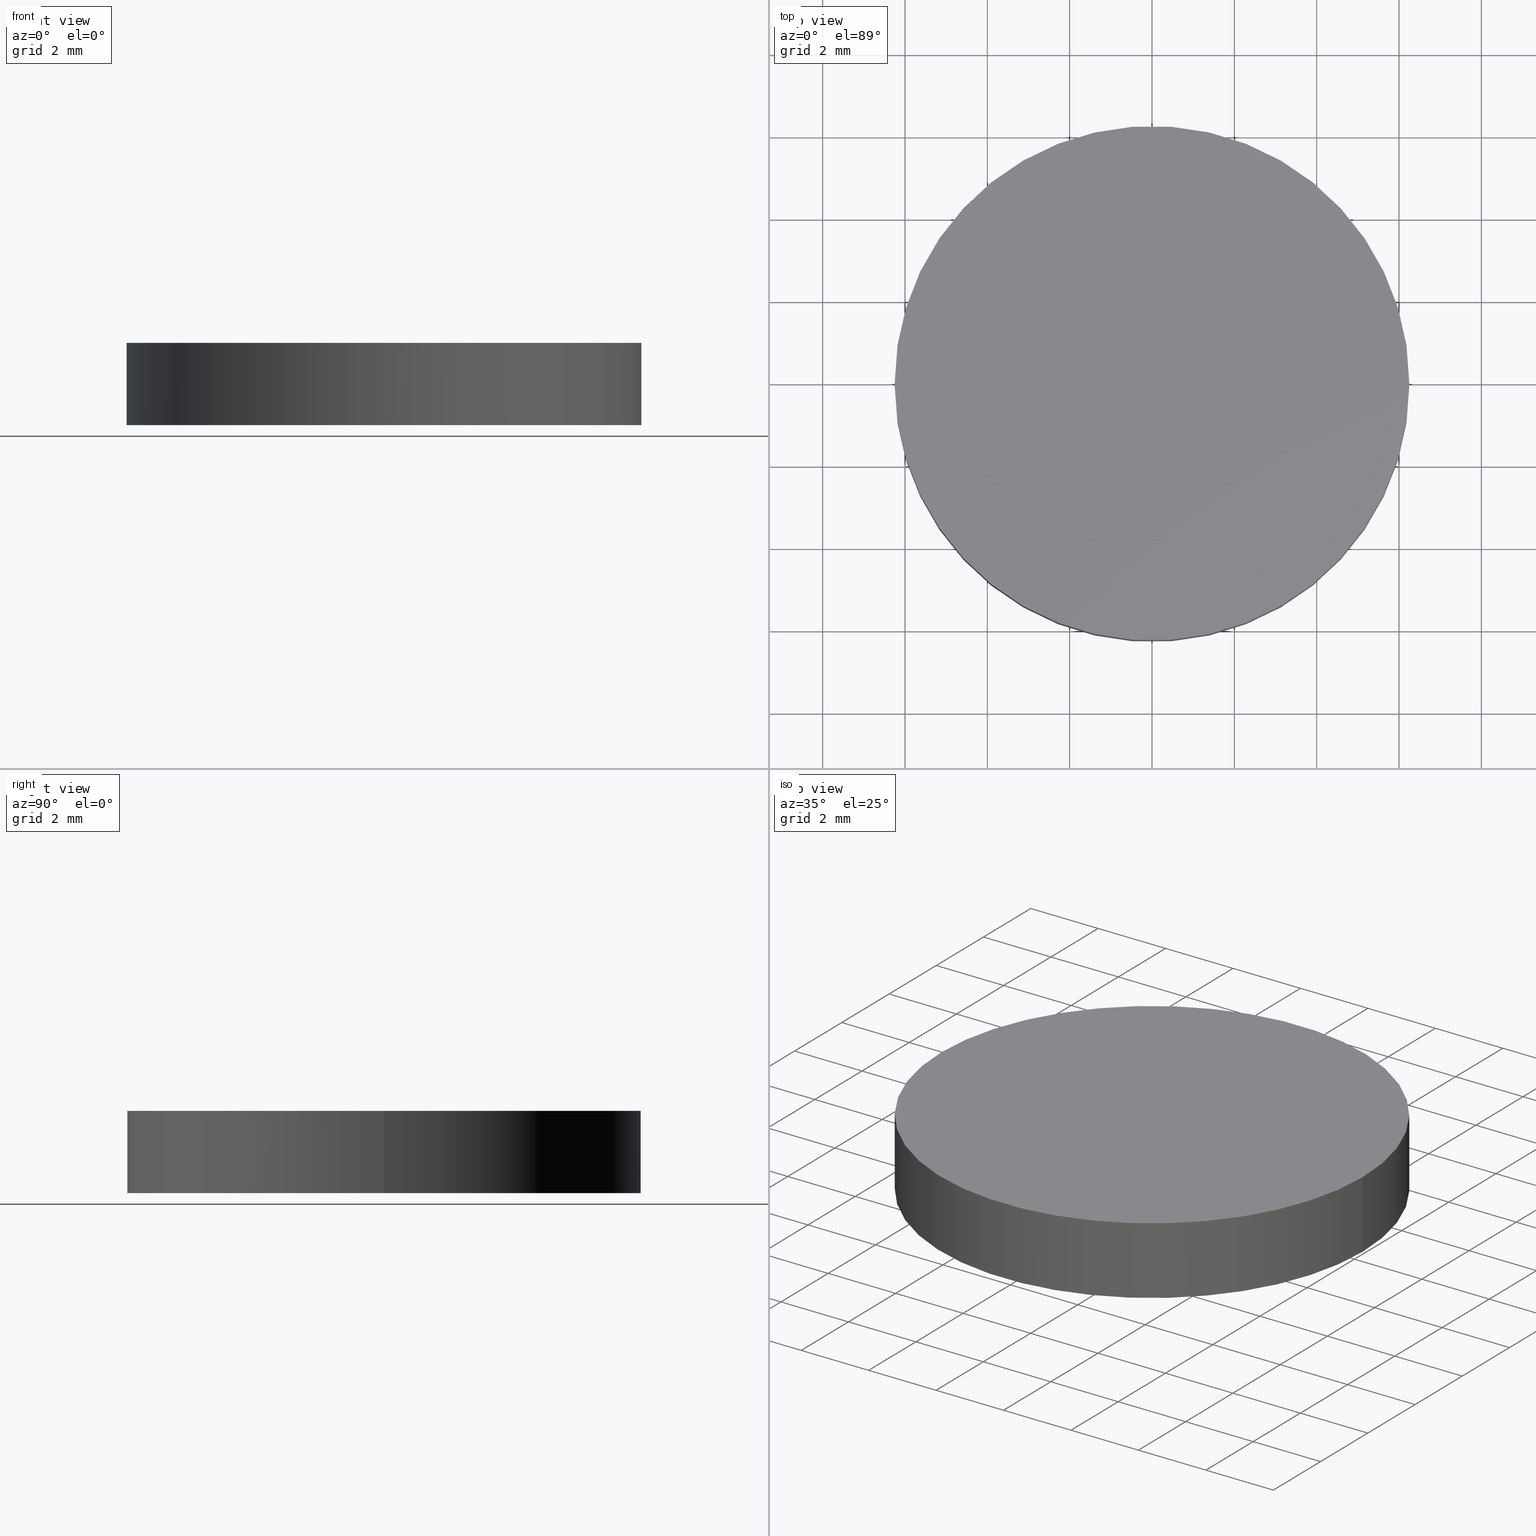
[diagram: canonical four-view strip — front | top / right | iso, engineering-drawing reading convention]
A machine part, canonical four-view strip (front | top / right | iso — engineering-drawing reading convention). The complete STEP part file that produces these views, byte-faithful:
ISO-10303-21;
HEADER;
FILE_DESCRIPTION (( 'STEP AP214' ),
    '1' );
FILE_NAME ('208662.STEP',
    '2020-03-06T03:55:41',
    ( '' ),
    ( '' ),
    'SwSTEP 2.0',
    'SolidWorks 2016',
    '' );
FILE_SCHEMA (( 'AUTOMOTIVE_DESIGN' ));
ENDSEC;

DATA;
#1 = VERTEX_POINT ( 'NONE', #77 ) ;
#2 = DIRECTION ( 'NONE',  ( 0.0000000000000000000, 0.0000000000000000000, 1.000000000000000000 ) ) ;
#3 = SURFACE_STYLE_USAGE ( .BOTH. , #69 ) ;
#4 = UNCERTAINTY_MEASURE_WITH_UNIT (LENGTH_MEASURE( 1.000000000000000100E-005 ), #122, 'distance_accuracy_value', 'NONE');
#5 = SURFACE_STYLE_FILL_AREA ( #104 ) ;
#6 = ORIENTED_EDGE ( 'NONE', *, *, #17, .T. ) ;
#7 = UNCERTAINTY_MEASURE_WITH_UNIT (LENGTH_MEASURE( 1.000000000000000100E-005 ), #108, 'distance_accuracy_value', 'NONE');
#8 = ADVANCED_FACE ( 'NONE', ( #119 ), #89, .F. ) ;
#9 = EDGE_LOOP ( 'NONE', ( #6, #85 ) ) ;
#10 = VECTOR ( 'NONE', #49, 1000.000000000000000 ) ;
#11 = FILL_AREA_STYLE_COLOUR ( '', #51 ) ;
#12 = CARTESIAN_POINT ( 'NONE',  ( -6.249999999999998200, 0.0000000000000000000, 2.000000000000000000 ) ) ;
#13 = APPLICATION_PROTOCOL_DEFINITION ( 'draft international standard', 'automotive_design', 1998, #47 ) ;
#14 = DIRECTION ( 'NONE',  ( 0.0000000000000000000, 0.0000000000000000000, 1.000000000000000000 ) ) ;
#15 = DIRECTION ( 'NONE',  ( 1.000000000000000000, 0.0000000000000000000, -0.0000000000000000000 ) ) ;
#16 = CARTESIAN_POINT ( 'NONE',  ( 0.0000000000000000000, 0.0000000000000000000, 0.0000000000000000000 ) ) ;
#17 = EDGE_CURVE ( 'NONE', #30, #31, #92, .T. ) ;
#18 = CIRCLE ( 'NONE', #125, 6.249999999999998200 ) ;
#19 = CARTESIAN_POINT ( 'NONE',  ( 6.249999999999998200, 7.654042494670955600E-016, 2.000000000000000000 ) ) ;
#20 = VERTEX_POINT ( 'NONE', #21 ) ;
#21 = CARTESIAN_POINT ( 'NONE',  ( 6.249999999999998200, 7.654042494670955600E-016, 0.0000000000000000000 ) ) ;
#22 = DIRECTION ( 'NONE',  ( -0.0000000000000000000, -0.0000000000000000000, -1.000000000000000000 ) ) ;
#23 = ORIENTED_EDGE ( 'NONE', *, *, #38, .T. ) ;
#24 = AXIS2_PLACEMENT_3D ( 'NONE', #57, #96, #88 ) ;
#25 = DIRECTION ( 'NONE',  ( -1.000000000000000000, 0.0000000000000000000, 0.0000000000000000000 ) ) ;
#26 = DIRECTION ( 'NONE',  ( -1.000000000000000000, 0.0000000000000000000, 0.0000000000000000000 ) ) ;
#27 = MANIFOLD_SOLID_BREP ( '͹̨-����1', #64 ) ;
#28 = EDGE_LOOP ( 'NONE', ( #136, #79, #23, #135 ) ) ;
#29 = SHAPE_DEFINITION_REPRESENTATION ( #114, #72 ) ;
#30 = VERTEX_POINT ( 'NONE', #55 ) ;
#31 = VERTEX_POINT ( 'NONE', #19 ) ;
#32 = COLOUR_RGB ( '',1.000000000000000000, 1.000000000000000000, 1.000000000000000000 ) ;
#33 = CARTESIAN_POINT ( 'NONE',  ( 0.0000000000000000000, 0.0000000000000000000, 2.000000000000000000 ) ) ;
#34 = DIRECTION ( 'NONE',  ( 0.0000000000000000000, 0.0000000000000000000, 1.000000000000000000 ) ) ;
#35 = ORIENTED_EDGE ( 'NONE', *, *, #76, .F. ) ;
#36 = PRESENTATION_STYLE_ASSIGNMENT (( #3 ) ) ;
#37 =( NAMED_UNIT ( * ) SI_UNIT ( $, .STERADIAN. ) SOLID_ANGLE_UNIT ( ) );
#38 = EDGE_CURVE ( 'NONE', #30, #1, #50, .T. ) ;
#39 = ORIENTED_EDGE ( 'NONE', *, *, #76, .T. ) ;
#40 = SURFACE_SIDE_STYLE ('',( #5 ) ) ;
#41 = DIRECTION ( 'NONE',  ( 0.0000000000000000000, 0.0000000000000000000, 1.000000000000000000 ) ) ;
#42 = ORIENTED_EDGE ( 'NONE', *, *, #38, .F. ) ;
#43 =( LENGTH_UNIT ( ) NAMED_UNIT ( * ) SI_UNIT ( .MILLI., .METRE. ) );
#44 =( GEOMETRIC_REPRESENTATION_CONTEXT ( 3 ) GLOBAL_UNCERTAINTY_ASSIGNED_CONTEXT ( ( #7 ) ) GLOBAL_UNIT_ASSIGNED_CONTEXT ( ( #108, #90, #81 ) ) REPRESENTATION_CONTEXT ( 'NONE', 'WORKASPACE' ) );
#45 = ADVANCED_FACE ( 'NONE', ( #128 ), #80, .T. ) ;
#46 = CARTESIAN_POINT ( 'NONE',  ( 0.0000000000000000000, 0.0000000000000000000, 2.000000000000000000 ) ) ;
#47 = APPLICATION_CONTEXT ( 'automotive_design' ) ;
#48 = DIRECTION ( 'NONE',  ( -1.000000000000000000, 0.0000000000000000000, 0.0000000000000000000 ) ) ;
#49 = DIRECTION ( 'NONE',  ( -0.0000000000000000000, -0.0000000000000000000, -1.000000000000000000 ) ) ;
#50 = LINE ( 'NONE', #12, #52 ) ;
#51 = COLOUR_RGB ( '',1.000000000000000000, 1.000000000000000000, 1.000000000000000000 ) ;
#52 = VECTOR ( 'NONE', #22, 1000.000000000000000 ) ;
#53 =( GEOMETRIC_REPRESENTATION_CONTEXT ( 3 ) GLOBAL_UNCERTAINTY_ASSIGNED_CONTEXT ( ( #4 ) ) GLOBAL_UNIT_ASSIGNED_CONTEXT ( ( #122, #60, #37 ) ) REPRESENTATION_CONTEXT ( 'NONE', 'WORKASPACE' ) );
#54 = CYLINDRICAL_SURFACE ( 'NONE', #137, 6.249999999999998200 ) ;
#55 = CARTESIAN_POINT ( 'NONE',  ( -6.249999999999998200, 0.0000000000000000000, 2.000000000000000000 ) ) ;
#56 = AXIS2_PLACEMENT_3D ( 'NONE', #62, #2, #15 ) ;
#57 = CARTESIAN_POINT ( 'NONE',  ( 0.0000000000000000000, 0.0000000000000000000, 0.0000000000000000000 ) ) ;
#58 = CARTESIAN_POINT ( 'NONE',  ( 0.0000000000000000000, 0.0000000000000000000, 2.000000000000000000 ) ) ;
#59 = FACE_OUTER_BOUND ( 'NONE', #9, .T. ) ;
#60 =( NAMED_UNIT ( * ) PLANE_ANGLE_UNIT ( ) SI_UNIT ( $, .RADIAN. ) );
#61 = ORIENTED_EDGE ( 'NONE', *, *, #127, .T. ) ;
#62 = CARTESIAN_POINT ( 'NONE',  ( 0.0000000000000000000, 0.0000000000000000000, 2.000000000000000000 ) ) ;
#63 = DIRECTION ( 'NONE',  ( -1.000000000000000000, 0.0000000000000000000, 0.0000000000000000000 ) ) ;
#64 = CLOSED_SHELL ( 'NONE', ( #67, #120, #45, #8 ) ) ;
#65 = AXIS2_PLACEMENT_3D ( 'NONE', #46, #113, #48 ) ;
#66 = EDGE_LOOP ( 'NONE', ( #103, #61, #39, #42 ) ) ;
#67 = ADVANCED_FACE ( 'NONE', ( #74 ), #54, .T. ) ;
#68 = DIRECTION ( 'NONE',  ( 1.000000000000000000, 0.0000000000000000000, 0.0000000000000000000 ) ) ;
#69 = SURFACE_SIDE_STYLE ('',( #98 ) ) ;
#70 = PRODUCT_DEFINITION_FORMATION_WITH_SPECIFIED_SOURCE ( '�κ�', '', #106, .NOT_KNOWN. ) ;
#71 = PLANE ( 'NONE',  #56 ) ;
#72 = ADVANCED_BREP_SHAPE_REPRESENTATION ( '208662', ( #27, #132 ), #82 ) ;
#73 = AXIS2_PLACEMENT_3D ( 'NONE', #33, #34, #109 ) ;
#74 = FACE_OUTER_BOUND ( 'NONE', #66, .T. ) ;
#75 = PRODUCT_RELATED_PRODUCT_CATEGORY ( 'part', '', ( #106 ) ) ;
#76 = EDGE_CURVE ( 'NONE', #20, #1, #18, .T. ) ;
#77 = CARTESIAN_POINT ( 'NONE',  ( -6.249999999999998200, 0.0000000000000000000, 0.0000000000000000000 ) ) ;
#78 =( NAMED_UNIT ( * ) SI_UNIT ( $, .STERADIAN. ) SOLID_ANGLE_UNIT ( ) );
#79 = ORIENTED_EDGE ( 'NONE', *, *, #17, .F. ) ;
#80 = CYLINDRICAL_SURFACE ( 'NONE', #65, 6.249999999999998200 ) ;
#81 =( NAMED_UNIT ( * ) SI_UNIT ( $, .STERADIAN. ) SOLID_ANGLE_UNIT ( ) );
#82 =( GEOMETRIC_REPRESENTATION_CONTEXT ( 3 ) GLOBAL_UNCERTAINTY_ASSIGNED_CONTEXT ( ( #126 ) ) GLOBAL_UNIT_ASSIGNED_CONTEXT ( ( #43, #130, #78 ) ) REPRESENTATION_CONTEXT ( 'NONE', 'WORKASPACE' ) );
#83 = PRODUCT_CONTEXT ( 'NONE', #99, 'mechanical' ) ;
#84 = CARTESIAN_POINT ( 'NONE',  ( 0.0000000000000000000, 0.0000000000000000000, 0.0000000000000000000 ) ) ;
#85 = ORIENTED_EDGE ( 'NONE', *, *, #134, .T. ) ;
#86 = EDGE_CURVE ( 'NONE', #1, #20, #87, .T. ) ;
#87 = CIRCLE ( 'NONE', #121, 6.249999999999998200 ) ;
#88 = DIRECTION ( 'NONE',  ( 1.000000000000000000, 0.0000000000000000000, -0.0000000000000000000 ) ) ;
#89 = PLANE ( 'NONE',  #24 ) ;
#90 =( NAMED_UNIT ( * ) PLANE_ANGLE_UNIT ( ) SI_UNIT ( $, .RADIAN. ) );
#91 = CARTESIAN_POINT ( 'NONE',  ( 0.0000000000000000000, 0.0000000000000000000, 2.000000000000000000 ) ) ;
#92 = CIRCLE ( 'NONE', #140, 6.249999999999998200 ) ;
#93 = STYLED_ITEM ( 'NONE', ( #36 ), #72 ) ;
#94 = EDGE_LOOP ( 'NONE', ( #124, #35 ) ) ;
#95 = PRESENTATION_STYLE_ASSIGNMENT (( #138 ) ) ;
#96 = DIRECTION ( 'NONE',  ( 0.0000000000000000000, 0.0000000000000000000, 1.000000000000000000 ) ) ;
#97 = PRESENTATION_LAYER_ASSIGNMENT (  '', '', ( #93 ) ) ;
#98 = SURFACE_STYLE_FILL_AREA ( #101 ) ;
#99 = APPLICATION_CONTEXT ( 'automotive_design' ) ;
#100 = APPLICATION_PROTOCOL_DEFINITION ( 'draft international standard', 'automotive_design', 1998, #99 ) ;
#101 = FILL_AREA_STYLE ('',( #11 ) ) ;
#102 = CARTESIAN_POINT ( 'NONE',  ( 6.249999999999998200, 7.654042494670955600E-016, 2.000000000000000000 ) ) ;
#103 = ORIENTED_EDGE ( 'NONE', *, *, #134, .F. ) ;
#104 = FILL_AREA_STYLE ('',( #107 ) ) ;
#105 = MECHANICAL_DESIGN_GEOMETRIC_PRESENTATION_REPRESENTATION (  '', ( #93 ), #53 ) ;
#106 = PRODUCT ( '208662', '208662', '', ( #83 ) ) ;
#107 = FILL_AREA_STYLE_COLOUR ( '', #32 ) ;
#108 =( LENGTH_UNIT ( ) NAMED_UNIT ( * ) SI_UNIT ( .MILLI., .METRE. ) );
#109 = DIRECTION ( 'NONE',  ( -1.000000000000000000, 0.0000000000000000000, 0.0000000000000000000 ) ) ;
#110 = CARTESIAN_POINT ( 'NONE',  ( 0.0000000000000000000, 0.0000000000000000000, 0.0000000000000000000 ) ) ;
#111 = DIRECTION ( 'NONE',  ( 0.0000000000000000000, 0.0000000000000000000, 1.000000000000000000 ) ) ;
#112 = STYLED_ITEM ( 'NONE', ( #95 ), #27 ) ;
#113 = DIRECTION ( 'NONE',  ( -0.0000000000000000000, -0.0000000000000000000, -1.000000000000000000 ) ) ;
#114 = PRODUCT_DEFINITION_SHAPE ( 'NONE', 'NONE',  #139 ) ;
#115 = MECHANICAL_DESIGN_GEOMETRIC_PRESENTATION_REPRESENTATION (  '', ( #112 ), #44 ) ;
#116 = LINE ( 'NONE', #102, #10 ) ;
#117 = CIRCLE ( 'NONE', #73, 6.249999999999998200 ) ;
#118 = PRESENTATION_LAYER_ASSIGNMENT (  '', '', ( #112 ) ) ;
#119 = FACE_OUTER_BOUND ( 'NONE', #94, .T. ) ;
#120 = ADVANCED_FACE ( 'NONE', ( #59 ), #71, .T. ) ;
#121 = AXIS2_PLACEMENT_3D ( 'NONE', #16, #111, #63 ) ;
#122 =( LENGTH_UNIT ( ) NAMED_UNIT ( * ) SI_UNIT ( .MILLI., .METRE. ) );
#123 = DIRECTION ( 'NONE',  ( 0.0000000000000000000, 0.0000000000000000000, 1.000000000000000000 ) ) ;
#124 = ORIENTED_EDGE ( 'NONE', *, *, #86, .F. ) ;
#125 = AXIS2_PLACEMENT_3D ( 'NONE', #84, #123, #26 ) ;
#126 = UNCERTAINTY_MEASURE_WITH_UNIT (LENGTH_MEASURE( 1.000000000000000100E-005 ), #43, 'distance_accuracy_value', 'NONE');
#127 = EDGE_CURVE ( 'NONE', #31, #20, #116, .T. ) ;
#128 = FACE_OUTER_BOUND ( 'NONE', #28, .T. ) ;
#129 = DIRECTION ( 'NONE',  ( -1.000000000000000000, 0.0000000000000000000, 0.0000000000000000000 ) ) ;
#130 =( NAMED_UNIT ( * ) PLANE_ANGLE_UNIT ( ) SI_UNIT ( $, .RADIAN. ) );
#131 = DIRECTION ( 'NONE',  ( -0.0000000000000000000, -0.0000000000000000000, -1.000000000000000000 ) ) ;
#132 = AXIS2_PLACEMENT_3D ( 'NONE', #110, #14, #68 ) ;
#133 = PRODUCT_DEFINITION_CONTEXT ( 'detailed design', #47, 'design' ) ;
#134 = EDGE_CURVE ( 'NONE', #31, #30, #117, .T. ) ;
#135 = ORIENTED_EDGE ( 'NONE', *, *, #86, .T. ) ;
#136 = ORIENTED_EDGE ( 'NONE', *, *, #127, .F. ) ;
#137 = AXIS2_PLACEMENT_3D ( 'NONE', #91, #131, #25 ) ;
#138 = SURFACE_STYLE_USAGE ( .BOTH. , #40 ) ;
#139 = PRODUCT_DEFINITION ( 'δ֪', '', #70, #133 ) ;
#140 = AXIS2_PLACEMENT_3D ( 'NONE', #58, #41, #129 ) ;
ENDSEC;
END-ISO-10303-21;
